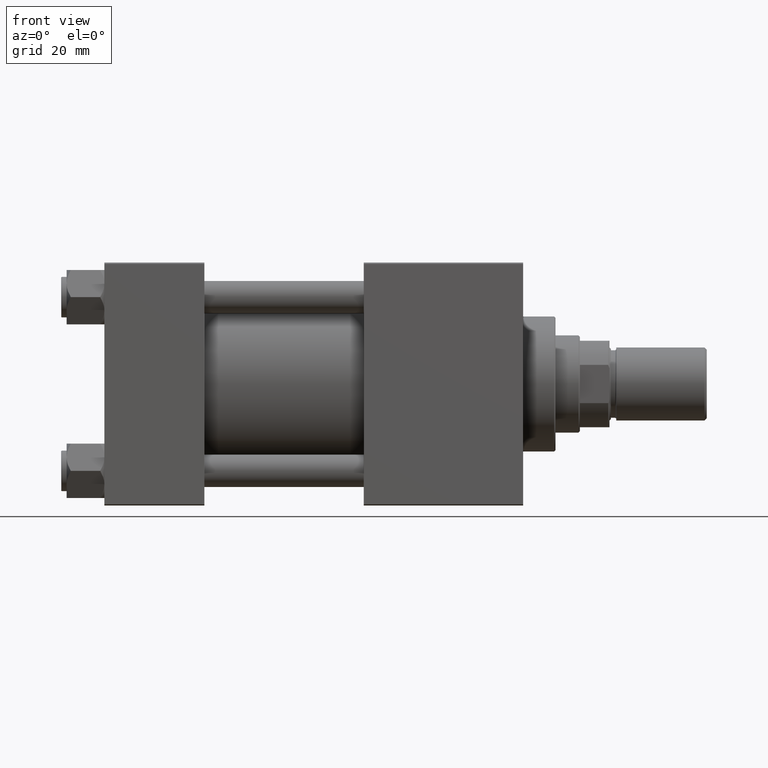
[diagram: clean part render]
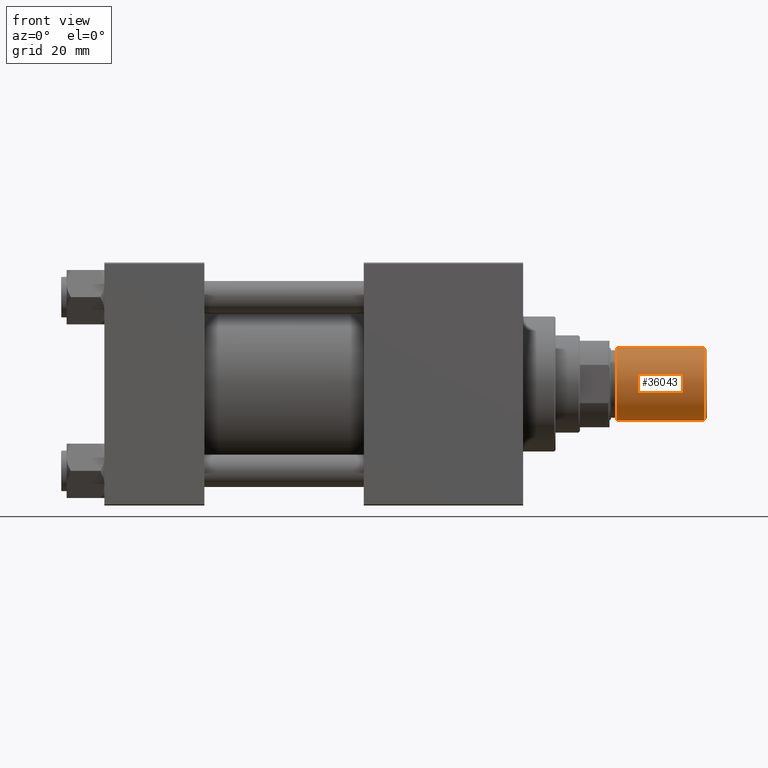
[diagram: same view with one face highlighted and labeled with its STEP entity id]
A machine part, front view. The second image highlights one B-rep face of the part: STEP entity #36043.
In plain terms, the highlighted cylindrical surface (edge-blend (fillet) strip) has radius 13.5 mm, axis along (1, -0, -0).
Its self-contained STEP definition (entity closure, byte-faithful):
#304 = EDGE_LOOP ( 'NONE', ( #45663, #22443, #25349, #3950 ) ) ;
#3950 = ORIENTED_EDGE ( 'NONE', *, *, #16830, .T. ) ;
#4418 = DIRECTION ( 'NONE',  ( -0.000000000000000000, -0.000000000000000000, 1.000000000000000000 ) ) ;
#4474 = CIRCLE ( 'NONE', #9391, 13.50000000000000000 ) ;
#9391 = AXIS2_PLACEMENT_3D ( 'NONE', #31336, #4418, #46953 ) ;
#9534 = CIRCLE ( 'NONE', #32479, 13.50000000000000000 ) ;
#9943 = CARTESIAN_POINT ( 'NONE',  ( -13.50000000000000000, 0.000000000000000000, 0.7999999999999951594 ) ) ;
#10255 = CARTESIAN_POINT ( 'NONE',  ( 13.50000000000000000, 1.653273178848926867E-15, 0.7999999999999951594 ) ) ;
#10569 = DIRECTION ( 'NONE',  ( -0.000000000000000000, -0.000000000000000000, -1.000000000000000000 ) ) ;
#11781 = VECTOR ( 'NONE', #10569, 1000.000000000000000 ) ;
#11983 = DIRECTION ( 'NONE',  ( 0.000000000000000000, 0.000000000000000000, 1.000000000000000000 ) ) ;
#13340 = FACE_OUTER_BOUND ( 'NONE', #304, .T. ) ;
#13916 = EDGE_CURVE ( 'NONE', #25706, #28798, #22606, .T. ) ;
#16830 = EDGE_CURVE ( 'NONE', #28798, #27587, #4474, .T. ) ;
#17191 = CYLINDRICAL_SURFACE ( 'NONE', #32159, 13.50000000000000000 ) ;
#18393 = VERTEX_POINT ( 'NONE', #32027 ) ;
#18488 = CARTESIAN_POINT ( 'NONE',  ( 13.50000000000000000, 1.653273178848926867E-15, 33.50000000000000000 ) ) ;
#22443 = ORIENTED_EDGE ( 'NONE', *, *, #24337, .F. ) ;
#22606 = LINE ( 'NONE', #45676, #11781 ) ;
#24337 = EDGE_CURVE ( 'NONE', #25706, #18393, #9534, .T. ) ;
#25349 = ORIENTED_EDGE ( 'NONE', *, *, #13916, .T. ) ;
#25706 = VERTEX_POINT ( 'NONE', #39246 ) ;
#26379 = DIRECTION ( 'NONE',  ( -0.000000000000000000, -0.000000000000000000, -1.000000000000000000 ) ) ;
#27587 = VERTEX_POINT ( 'NONE', #10255 ) ;
#28798 = VERTEX_POINT ( 'NONE', #9943 ) ;
#28976 = CARTESIAN_POINT ( 'NONE',  ( 0.000000000000000000, 0.000000000000000000, 33.50000000000000000 ) ) ;
#29958 = EDGE_CURVE ( 'NONE', #18393, #27587, #35134, .T. ) ;
#31336 = CARTESIAN_POINT ( 'NONE',  ( 0.000000000000000000, 0.000000000000000000, 0.7999999999999951594 ) ) ;
#32027 = CARTESIAN_POINT ( 'NONE',  ( 13.50000000000000000, 1.653273178848926867E-15, 33.50000000000000000 ) ) ;
#32159 = AXIS2_PLACEMENT_3D ( 'NONE', #28976, #26379, #34081 ) ;
#32479 = AXIS2_PLACEMENT_3D ( 'NONE', #47088, #11983, #36851 ) ;
#34081 = DIRECTION ( 'NONE',  ( -1.000000000000000000, 0.000000000000000000, 0.000000000000000000 ) ) ;
#35134 = LINE ( 'NONE', #18488, #47381 ) ;
#36043 = ADVANCED_FACE ( 'NONE', ( #13340 ), #17191, .T. ) ;
#36851 = DIRECTION ( 'NONE',  ( 1.000000000000000000, 0.000000000000000000, 0.000000000000000000 ) ) ;
#39246 = CARTESIAN_POINT ( 'NONE',  ( -13.50000000000000000, 0.000000000000000000, 33.50000000000000000 ) ) ;
#45663 = ORIENTED_EDGE ( 'NONE', *, *, #29958, .F. ) ;
#45676 = CARTESIAN_POINT ( 'NONE',  ( -13.50000000000000000, 0.000000000000000000, 33.50000000000000000 ) ) ;
#46953 = DIRECTION ( 'NONE',  ( 1.000000000000000000, 0.000000000000000000, 0.000000000000000000 ) ) ;
#47088 = CARTESIAN_POINT ( 'NONE',  ( 0.000000000000000000, 0.000000000000000000, 33.50000000000000000 ) ) ;
#47381 = VECTOR ( 'NONE', #50496, 1000.000000000000000 ) ;
#50496 = DIRECTION ( 'NONE',  ( -0.000000000000000000, -0.000000000000000000, -1.000000000000000000 ) ) ;